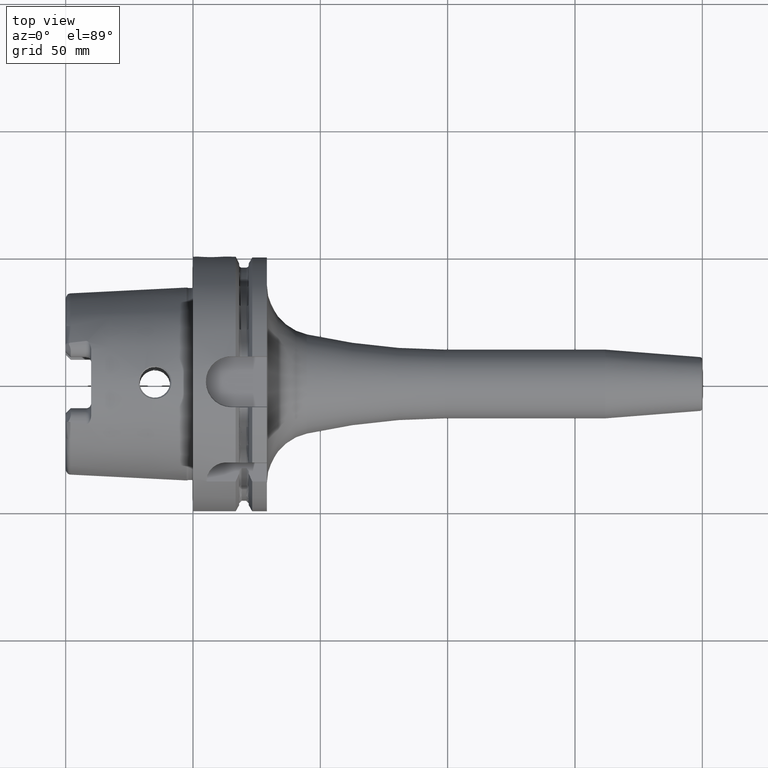
[diagram: clean part render]
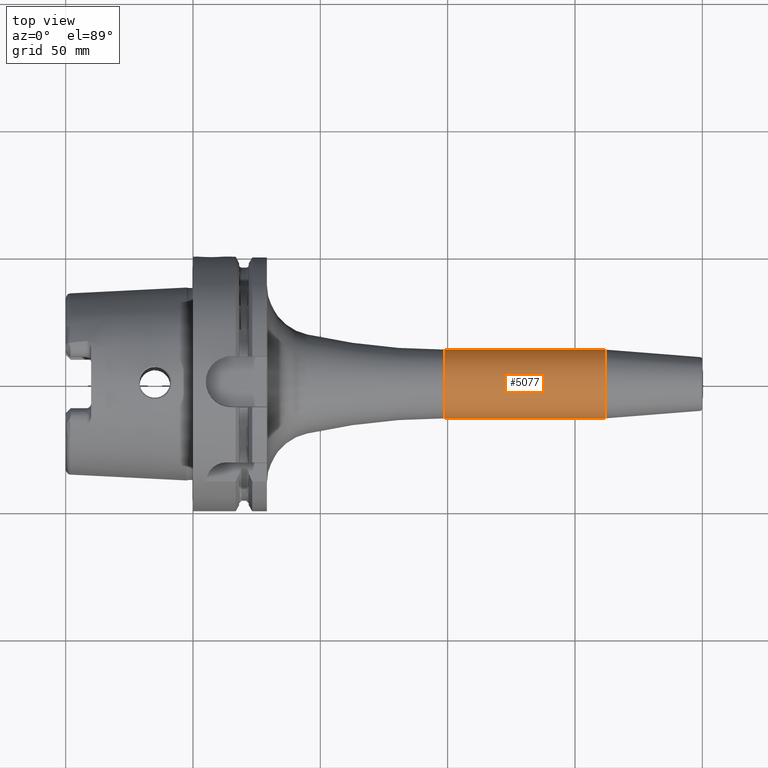
[diagram: same view with one face highlighted and labeled with its STEP entity id]
A machine part, top view. The second image highlights one B-rep face of the part: STEP entity #5077.
In plain terms, the highlighted cylindrical surface (edge-blend (fillet) strip) has radius 13.5 mm, axis along (1, 0, 0).
Its self-contained STEP definition (entity closure, byte-faithful):
#1845=DIRECTION('',(-1.E0,0.E0,0.E0));
#1846=VECTOR('',#1845,6.288138579148E1);
#1847=CARTESIAN_POINT('',(1.618813857915E2,-1.35E1,0.E0));
#1848=LINE('',#1847,#1846);
#1854=DIRECTION('',(-1.E0,0.E0,0.E0));
#1855=VECTOR('',#1854,6.288138579148E1);
#1856=CARTESIAN_POINT('',(1.618813857915E2,1.35E1,0.E0));
#1857=LINE('',#1856,#1855);
#1858=CARTESIAN_POINT('',(9.9E1,0.E0,0.E0));
#1859=DIRECTION('',(1.E0,0.E0,0.E0));
#1860=DIRECTION('',(0.E0,1.E0,0.E0));
#1861=AXIS2_PLACEMENT_3D('',#1858,#1859,#1860);
#1863=CARTESIAN_POINT('',(1.618813857915E2,0.E0,0.E0));
#1864=DIRECTION('',(1.E0,0.E0,0.E0));
#1865=DIRECTION('',(0.E0,1.E0,0.E0));
#1866=AXIS2_PLACEMENT_3D('',#1863,#1864,#1865);
#3149=CARTESIAN_POINT('',(1.618813857915E2,1.35E1,0.E0));
#3150=CARTESIAN_POINT('',(1.618813857915E2,-1.35E1,0.E0));
#3151=VERTEX_POINT('',#3149);
#3152=VERTEX_POINT('',#3150);
#3165=CARTESIAN_POINT('',(9.9E1,1.35E1,0.E0));
#3166=CARTESIAN_POINT('',(9.9E1,-1.35E1,0.E0));
#3167=VERTEX_POINT('',#3165);
#3168=VERTEX_POINT('',#3166);
#5065=CARTESIAN_POINT('',(2.045E1,0.E0,0.E0));
#5066=DIRECTION('',(1.E0,0.E0,0.E0));
#5067=DIRECTION('',(0.E0,-1.E0,0.E0));
#5068=AXIS2_PLACEMENT_3D('',#5065,#5066,#5067);
#5069=CYLINDRICAL_SURFACE('',#5068,1.35E1);
#5070=ORIENTED_EDGE('',*,*,#5030,.F.);
#5071=ORIENTED_EDGE('',*,*,#5060,.F.);
#5073=ORIENTED_EDGE('',*,*,#5072,.T.);
#5074=ORIENTED_EDGE('',*,*,#5056,.T.);
#5075=EDGE_LOOP('',(#5070,#5071,#5073,#5074));
#5076=FACE_OUTER_BOUND('',#5075,.F.);
#5077=ADVANCED_FACE('',(#5076),#5069,.T.);
#1862=CIRCLE('',#1861,1.35E1);
#1867=CIRCLE('',#1866,1.35E1);
#5030=EDGE_CURVE('',#3167,#3168,#1862,.T.);
#5056=EDGE_CURVE('',#3152,#3168,#1848,.T.);
#5060=EDGE_CURVE('',#3151,#3167,#1857,.T.);
#5072=EDGE_CURVE('',#3151,#3152,#1867,.T.);